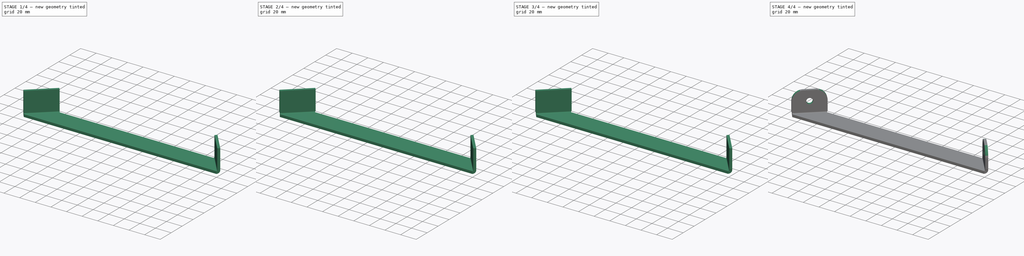
[diagram: build sequence overview — one tinted view per stage of 4, left to right]
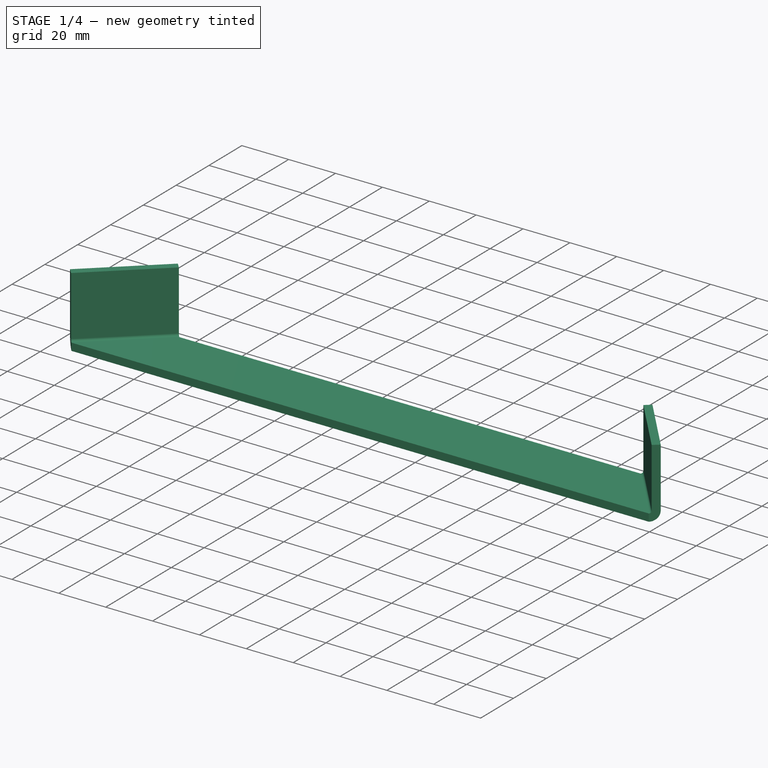
[diagram: stage 1 of 4 — iso view after this stage's code; geometry added in this stage tinted green]
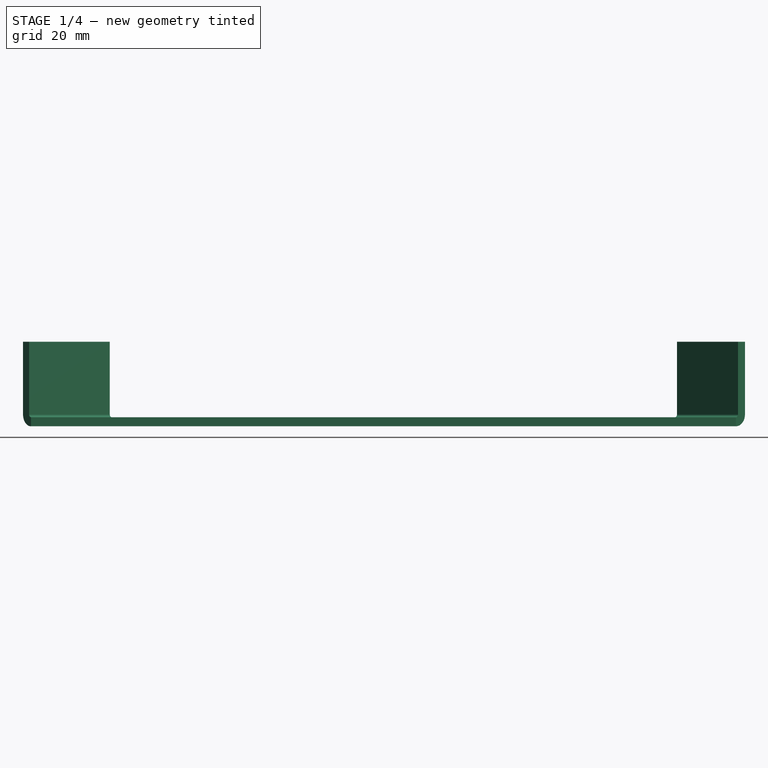
[diagram: stage 1 of 4 — front view after this stage's code; geometry added in this stage tinted green]
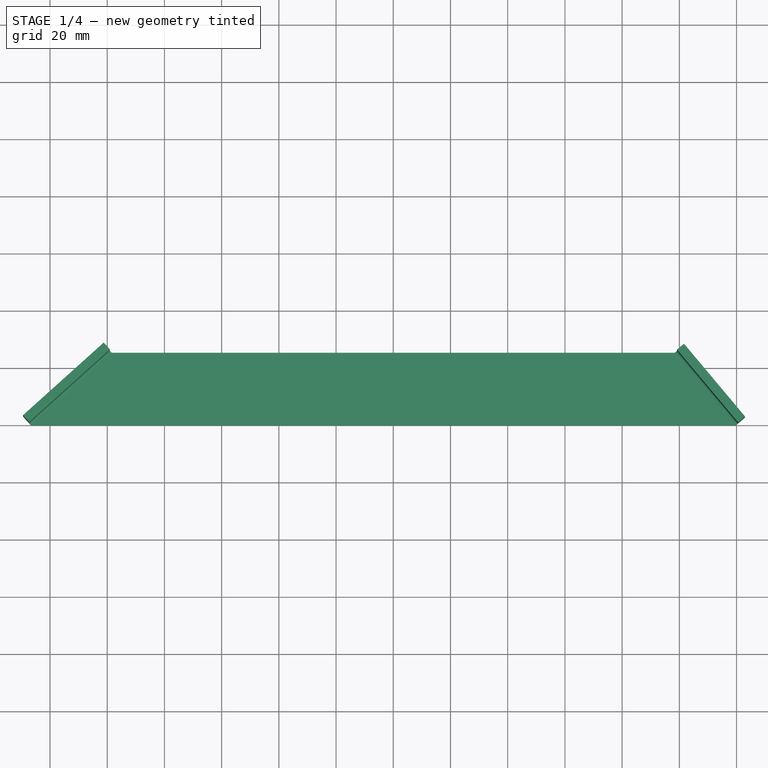
[diagram: stage 1 of 4 — top view after this stage's code; geometry added in this stage tinted green]
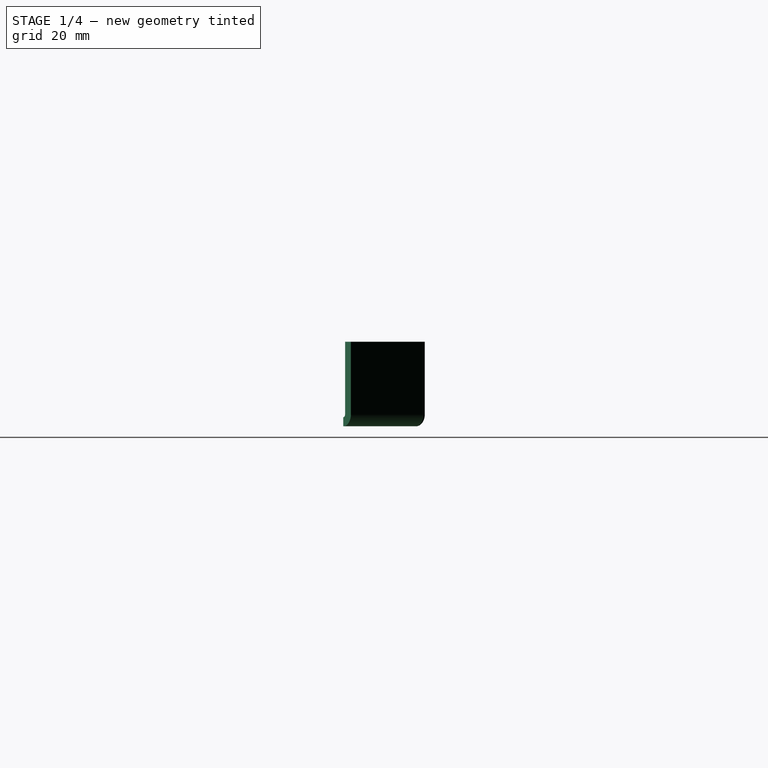
[diagram: stage 1 of 4 — right view after this stage's code; geometry added in this stage tinted green]
FCSTD DOCUMENT  (FreeCAD 2023.131R26244 +5365 (Git))
Label: dodge licence plate holder support
License: All rights reserved
LicenseURL: http://en.wikipedia.org/wiki/All_rights_reserved
objects: Sketcher::SketchObject×4, PartDesign::Pocket×4, PartDesign::FeaturePython×2, PartDesign::Hole×2, PartDesign::Pad×1, PartDesign::Chamfer×1, PartDesign::Fillet×1, PartDesign::Body×1, Part::Feature×1, Part::Part2DObjectPython×1
note: 42 computed .brp shape members not serialized (recipe doc carries the construction recipe); baked Part::Feature solids carry a one-line shape summary decoded from their .brp

FEATURE [Sketcher::SketchObject] Sketch
  ArcFitTolerance = 1e-06
  AttachmentSupport = -> [XY_Plane]
  ExternalBSplineMaxDegree = 5
  ExternalBSplineTolerance = 0.0001
  FixShape = 1
  FullyConstrained = true
  InternalTolerance = 1e-06
  InvalidShape = false
  MakeInternals = false
  MapMode = 5
  Support = -> [XY_Plane]
  TreeRank = 13
  ValidateShape = false
  sketch-geometry (4):
    g0: LineSegment StartX=-98.425 StartY=25.4 StartZ=0 EndX=-126.635 EndY=-3.6e-15 EndZ=0
    g1: LineSegment StartX=-98.425 StartY=25.4 StartZ=0 EndX=98.425 EndY=25.4 EndZ=0
    g2: LineSegment StartX=98.425 StartY=25.4 StartZ=0 EndX=119.738 EndY=0 EndZ=0
    g3: LineSegment StartX=119.738 StartY=0 StartZ=0 EndX=-126.635 EndY=0 EndZ=0
  constraints (11):
    c: PointOnObject(g0,g-1)
    c: Coincident(g1,g0)
    c: Coincident(g2,g1)
    c: PointOnObject(g2,g-1)
    c: Coincident(g3,g2)
    c: Coincident(g3,g0)
    c: Symmetric(g0,g1,g-2)
    c: Distance(g-1,g1) = 25.4
    c: Distance(g1,g0) = 196.85
    c: Angle(g2,g3) = 0.872665
    c: Angle(g3,g0) = 0.733038
FEATURE [PartDesign::Pad] Pad
  AddSubType = 0
  AlongSketchNormal = false
  AutoTaperInnerAngle = true
  CheckUpToFaceLimits = true
  ClaimChildren = false
  Direction = (0,0,1)
  Fit = 0
  FitJoin = 0
  FixShape = 1
  InnerFit = 0
  InnerFitJoin = 0
  InvalidShape = false
  Length = 3.175
  Length2 = 100
  Linearize = true
  NewSolid = false
  Profile = -> Sketch
  Suppress = false
  TaperInnerAngle = 0
  TaperInnerAngleRev = 0
  TreeRank = 14
  Type = 0
  ValidateShape = false
  _ProfileBasedVersion = 1
FEATURE [PartDesign::FeaturePython] Bend  # WARN: FeaturePython — macro-defined, semantics opaque (R4)
  AutoMiter = true
  BaseFeature = -> Pad
  BendType = 0
  FixShape = 1
  InvalidShape = false
  LengthList = [25.4]
  LengthSpec = 0
  NewSolid = false
  ReliefFactor = 0.7
  Suppress = false
  TreeRank = 15
  UseReliefFactor = false
  ValidateShape = false
  angle = 90
  baseObject = -> Pad [Face3]
  bendAList = [90]
  extend1 = 0
  extend2 = 0
  gap1 = 0
  gap2 = 0
  invert = false
  kfactor = 0.5
  length = 25.4
  maxExtendDist = 5
  minGap = 0.2
  minReliefGap = 1
  miterangle1 = 0
  miterangle2 = 0
  offset = 0
  radius = 1
  reliefType = 0
  reliefd = 1
  reliefw = 0.8
  sketchflip = false
  sketchinvert = false
  unfold = false
FEATURE [PartDesign::FeaturePython] Bend001  # WARN: FeaturePython — macro-defined, semantics opaque (R4)
  AutoMiter = true
  BaseFeature = -> Bend
  BendType = 0
  FixShape = 1
  InvalidShape = false
  LengthList = [25.4]
  LengthSpec = 0
  NewSolid = false
  ReliefFactor = 0.7
  Suppress = false
  TreeRank = 16
  UseReliefFactor = false
  ValidateShape = false
  angle = 90
  baseObject = -> Bend [Face1]
  bendAList = [90]
  extend1 = 0
  extend2 = 0
  gap1 = 0
  gap2 = 0
  invert = false
  kfactor = 0.5
  length = 25.4
  maxExtendDist = 5
  minGap = 0.2
  minReliefGap = 1
  miterangle1 = 0
  miterangle2 = 0
  offset = 0
  radius = 1
  reliefType = 0
  reliefd = 1
  reliefw = 0.8
  sketchflip = false
  sketchinvert = false
  unfold = false
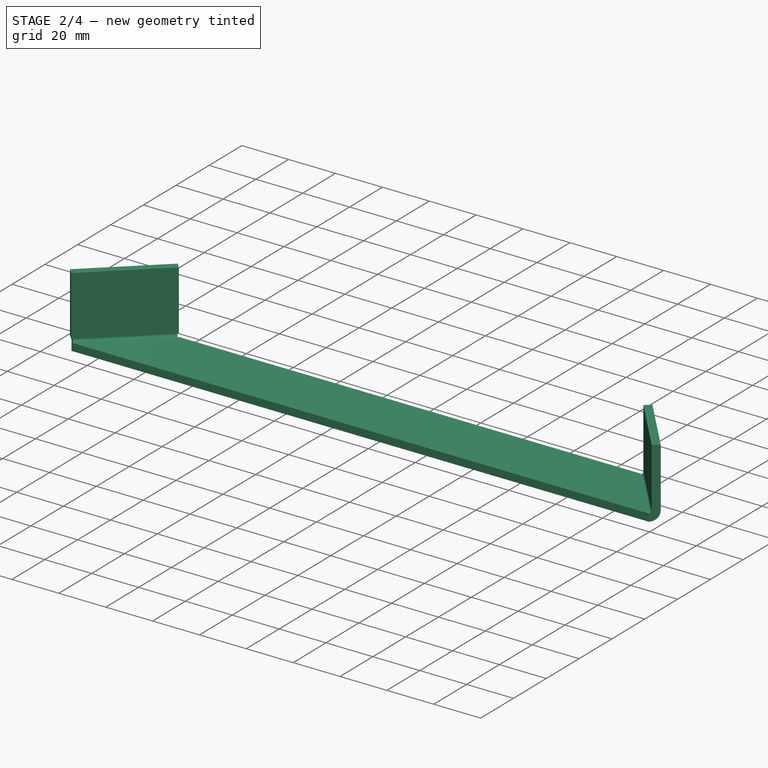
[diagram: stage 2 of 4 — iso view after this stage's code; geometry added in this stage tinted green]
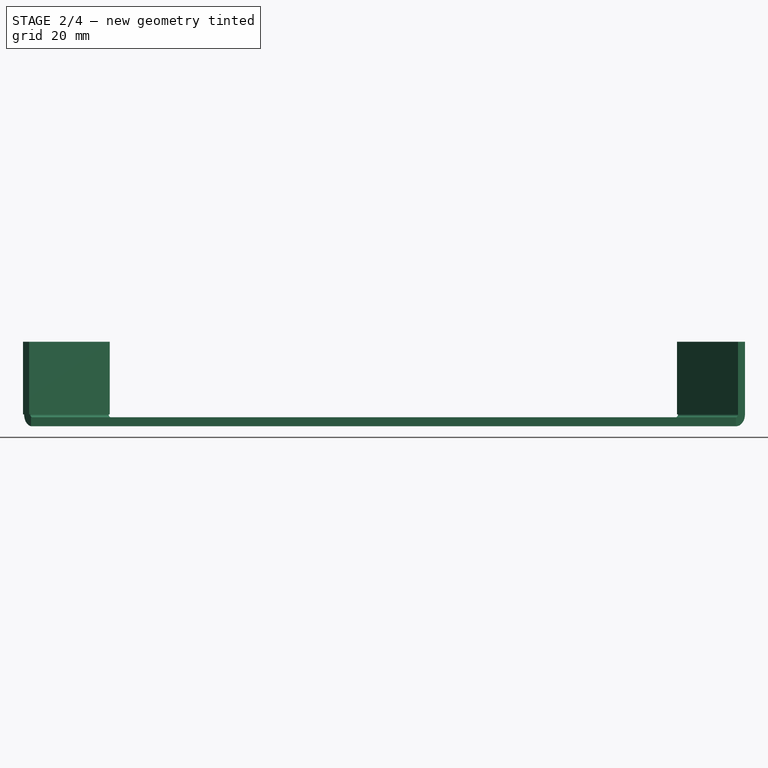
[diagram: stage 2 of 4 — front view after this stage's code; geometry added in this stage tinted green]
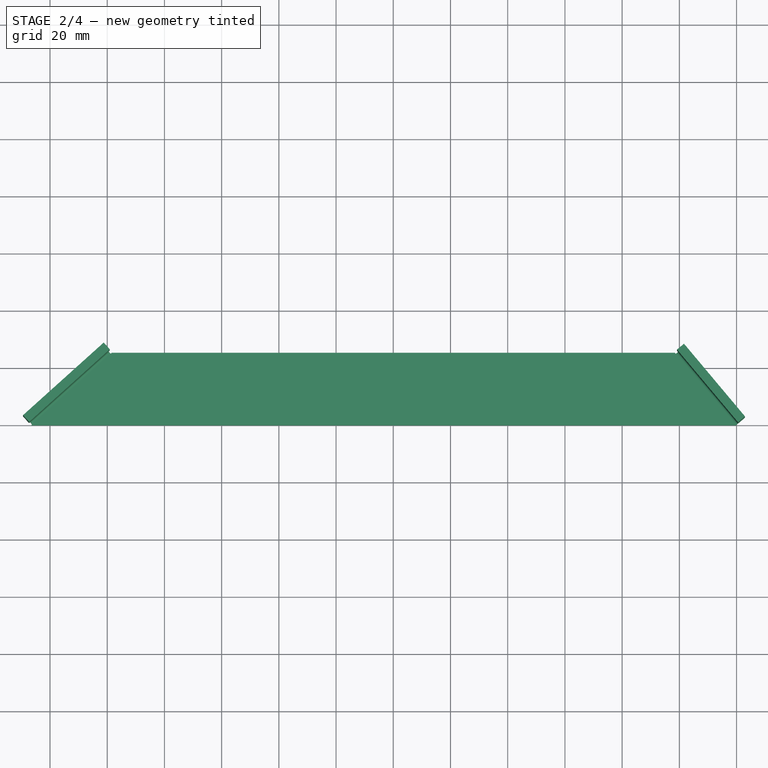
[diagram: stage 2 of 4 — top view after this stage's code; geometry added in this stage tinted green]
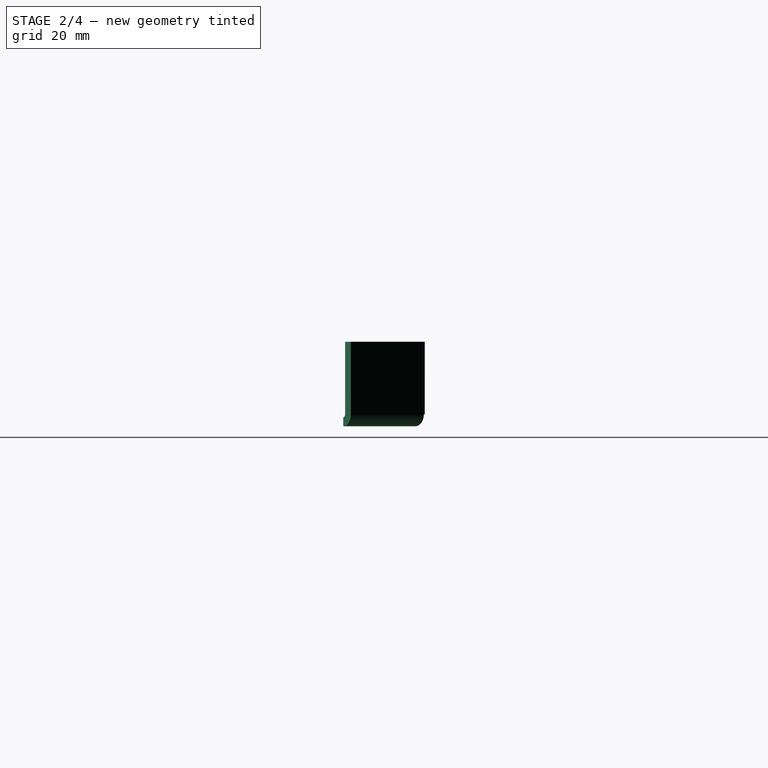
[diagram: stage 2 of 4 — right view after this stage's code; geometry added in this stage tinted green]
FEATURE [Sketcher::SketchObject] Sketch001
  ArcFitTolerance = 1e-06
  AttachmentSupport = -> [Bend001]
  ExternalBSplineMaxDegree = 5
  ExternalBSplineTolerance = 0.0001
  ExternalGeometry = -> [Bend001]
  FixShape = 1
  FullyConstrained = true
  InternalTolerance = 1e-06
  InvalidShape = false
  MakeInternals = false
  MapMode = 5
  Placement = pos=(-57.368,63.7136,-9.5e-15) rot=(0.87885,0.337359,0.337359;1.69958rad)
  Support = -> [Bend001]
  TreeRank = 17
  ValidateShape = false
  sketch-geometry (1):
    g0: Circle CenterX=-75.128 CenterY=16.875 CenterZ=0 NormalX=0 NormalY=0 NormalZ=1 AngleXU=0 Radius=3.2385
  constraints (2):
    c: Symmetric(g-3,g-4,g0)
    c: Diameter(g0) = 6.477
FEATURE [PartDesign::Pocket] Pocket
  AddSubType = 1
  AutoTaperInnerAngle = true
  BaseFeature = -> Bend001
  CheckUpToFaceLimits = true
  ClaimChildren = false
  Fit = 0
  FitJoin = 0
  FixShape = 1
  InnerFit = 0
  InnerFitJoin = 0
  InvalidShape = false
  Length = 0.508
  Length2 = 100
  Linearize = true
  NewSolid = false
  Profile = -> Bend001 [Face13]
  Suppress = false
  TaperInnerAngle = 0
  TaperInnerAngleRev = 0
  TreeRank = 21
  Type = 0
  ValidateShape = false
  _ProfileBasedVersion = 1
  _Version = 1
FEATURE [PartDesign::Pocket] Pocket001
  AddSubType = 1
  AutoTaperInnerAngle = true
  BaseFeature = -> Pocket
  CheckUpToFaceLimits = true
  ClaimChildren = false
  Fit = 0
  FitJoin = 0
  FixShape = 1
  InnerFit = 0
  InnerFitJoin = 0
  InvalidShape = false
  Length = 0.508
  Length2 = 100
  Linearize = true
  NewSolid = false
  Profile = -> Pocket [Face2]
  Suppress = false
  TaperInnerAngle = 0
  TaperInnerAngleRev = 0
  TreeRank = 22
  Type = 0
  ValidateShape = false
  _ProfileBasedVersion = 1
  _Version = 1
FEATURE [PartDesign::Pocket] Pocket002
  AddSubType = 1
  AutoTaperInnerAngle = true
  BaseFeature = -> Pocket001
  CheckUpToFaceLimits = true
  ClaimChildren = false
  Fit = 0
  FitJoin = 0
  FixShape = 1
  InnerFit = 0
  InnerFitJoin = 0
  InvalidShape = false
  Length = 0.508
  Length2 = 100
  Linearize = true
  NewSolid = false
  Profile = -> Pocket001 [Face3]
  Suppress = false
  TaperInnerAngle = 0
  TaperInnerAngleRev = 0
  TreeRank = 23
  Type = 0
  ValidateShape = false
  _ProfileBasedVersion = 1
  _Version = 1
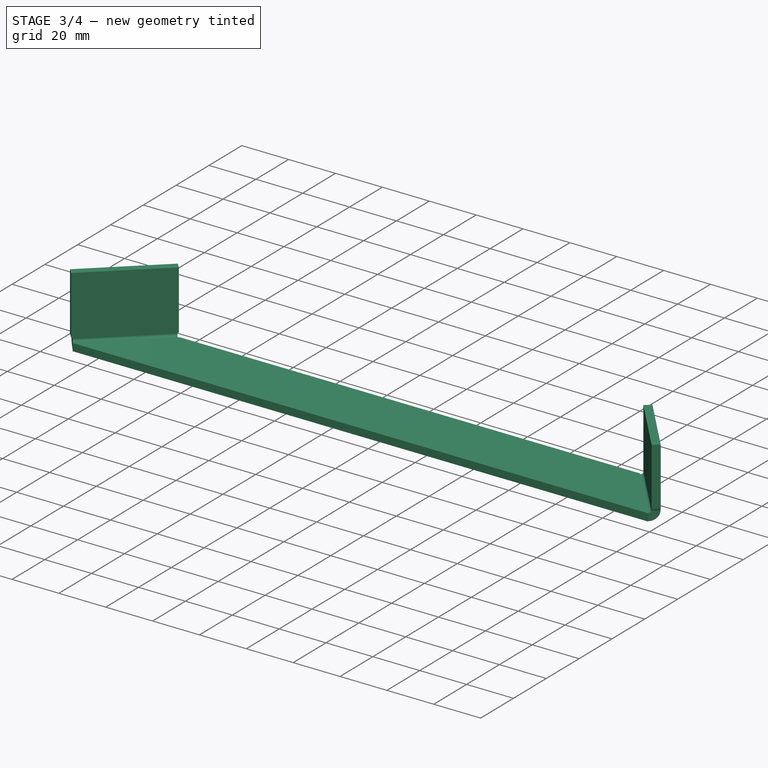
[diagram: stage 3 of 4 — iso view after this stage's code; geometry added in this stage tinted green]
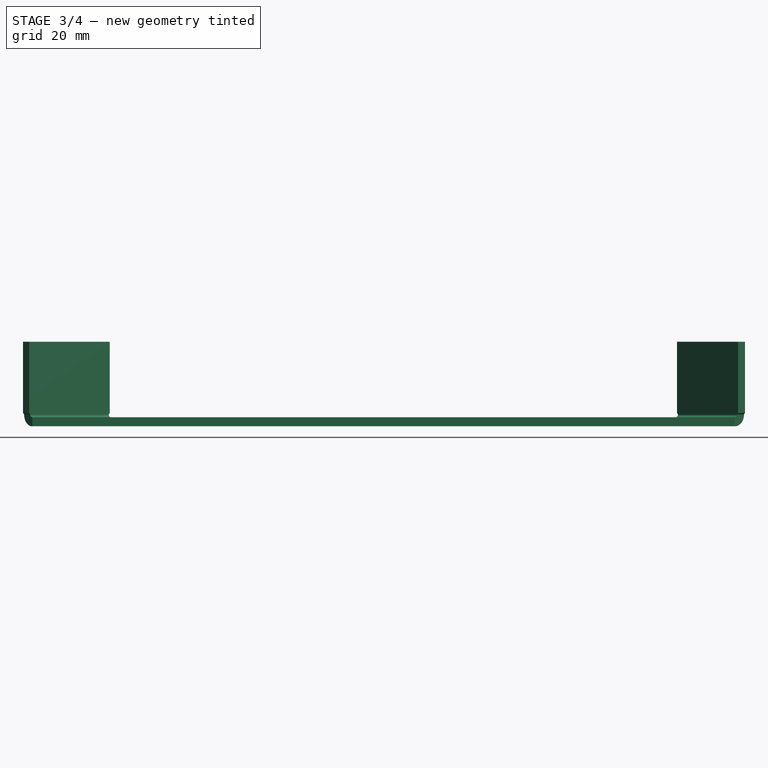
[diagram: stage 3 of 4 — front view after this stage's code; geometry added in this stage tinted green]
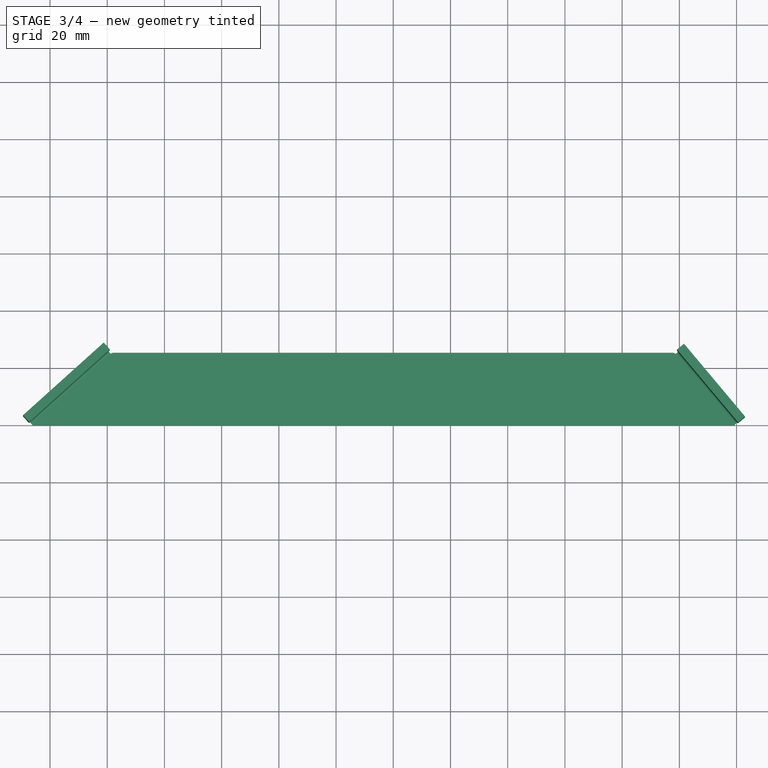
[diagram: stage 3 of 4 — top view after this stage's code; geometry added in this stage tinted green]
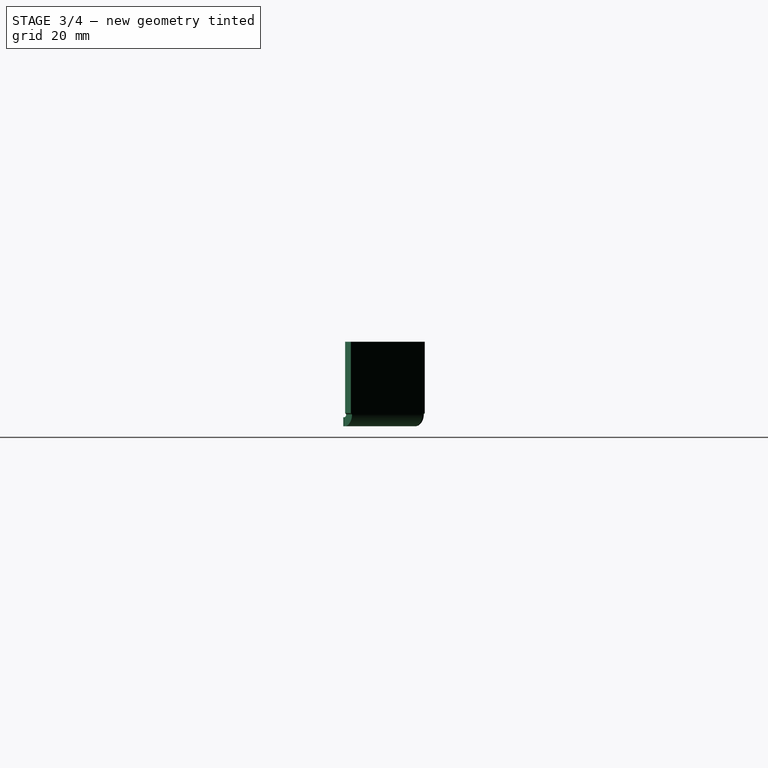
[diagram: stage 3 of 4 — right view after this stage's code; geometry added in this stage tinted green]
FEATURE [PartDesign::Pocket] Pocket003
  AddSubType = 1
  AutoTaperInnerAngle = true
  BaseFeature = -> Pocket002
  CheckUpToFaceLimits = true
  ClaimChildren = false
  Fit = 0
  FitJoin = 0
  FixShape = 1
  InnerFit = 0
  InnerFitJoin = 0
  InvalidShape = false
  Length = 0.508
  Length2 = 100
  Linearize = true
  NewSolid = false
  Profile = -> Pocket002 [Face18]
  Suppress = false
  TaperInnerAngle = 0
  TaperInnerAngleRev = 0
  TreeRank = 24
  Type = 0
  ValidateShape = false
  _ProfileBasedVersion = 1
  _Version = 1
FEATURE [PartDesign::Chamfer] Chamfer
  AddSubType = 0
  Angle = 45
  Base = -> Pocket003 [Edge67,Edge31,Edge2,Edge44,Edge29,Edge65,Edge41,Edge1]
  BaseFeature = -> Pocket003
  ChamferType = 0
  FixShape = 1
  FlipDirection = false
  InvalidShape = false
  NewSolid = false
  Size = 0.4826
  Size2 = 1
  SupportTransform = false
  Suppress = false
  TreeRank = 25
  ValidateShape = false
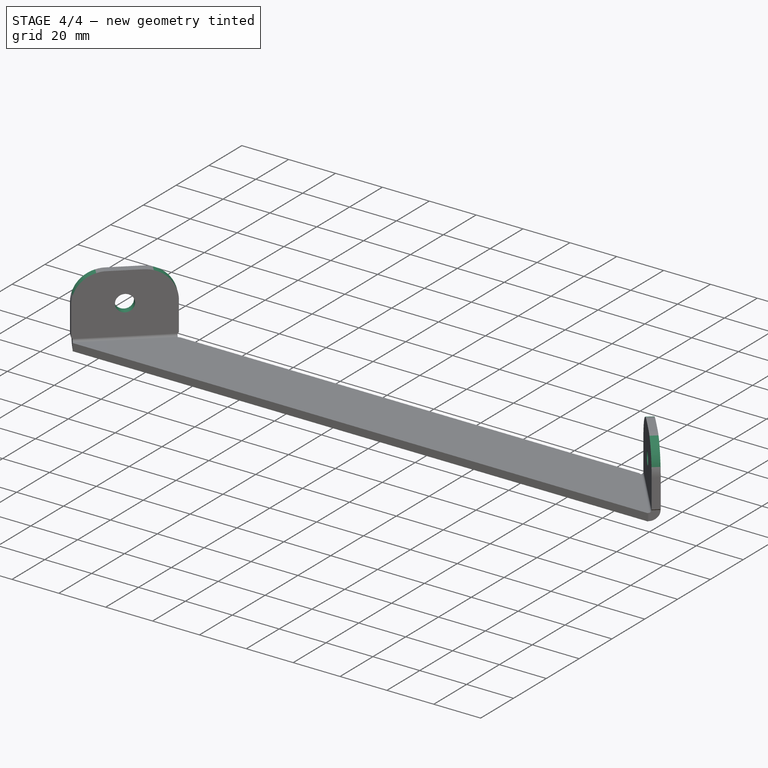
[diagram: stage 4 of 4 — iso view after this stage's code; geometry added in this stage tinted green]
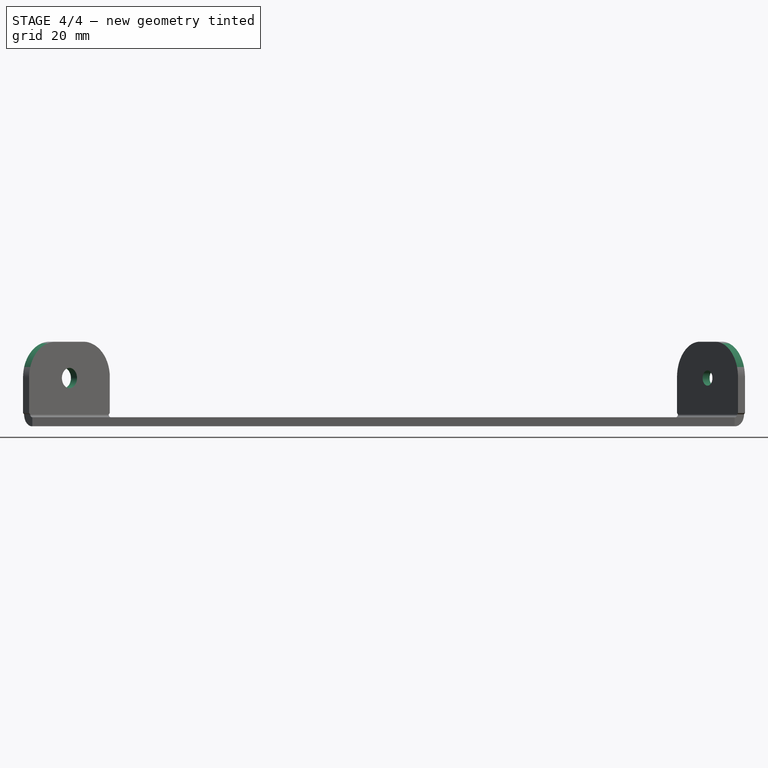
[diagram: stage 4 of 4 — front view after this stage's code; geometry added in this stage tinted green]
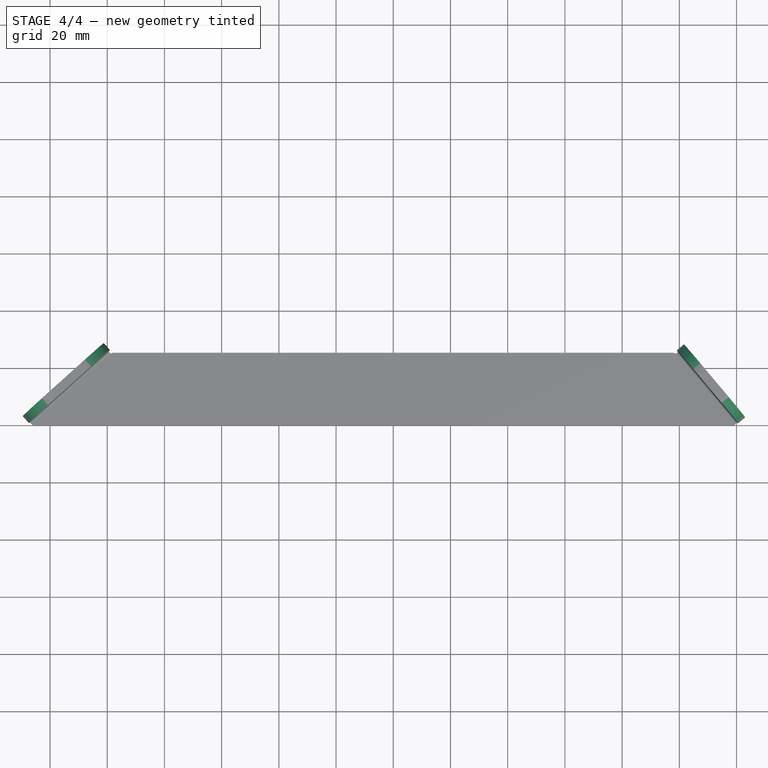
[diagram: stage 4 of 4 — top view after this stage's code; geometry added in this stage tinted green]
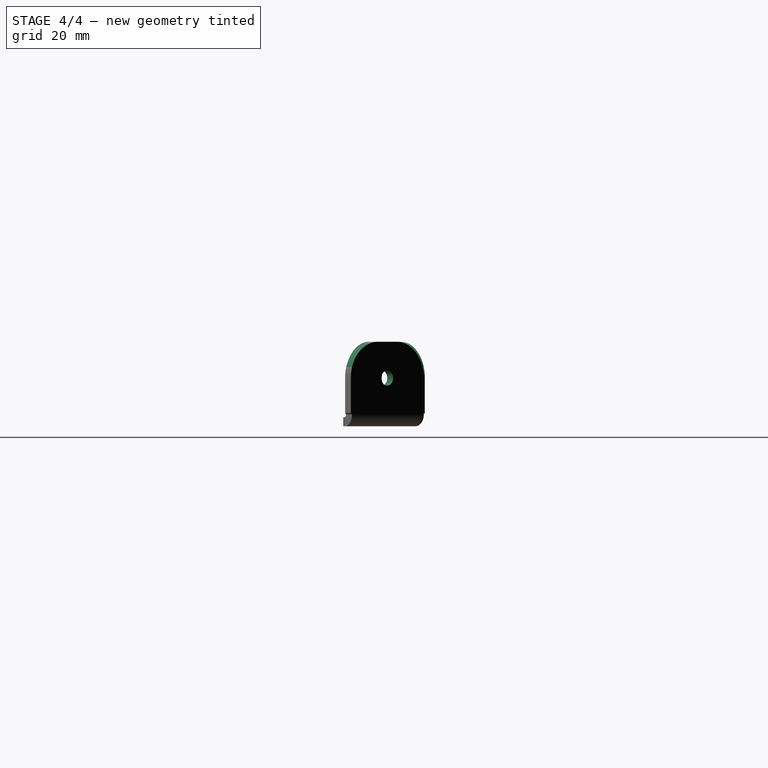
[diagram: stage 4 of 4 — right view after this stage's code; geometry added in this stage tinted green]
FEATURE [PartDesign::Hole] Hole
  AddSubType = 1
  BaseFeature = -> Chamfer
  ClaimChildren = false
  CustomThreadClearance = 0
  Depth = 25
  DepthType = 0
  Diameter = 7.1
  DrillForDepth = false
  DrillPoint = 1
  DrillPointAngle = 118
  Fit = 0
  FitJoin = 0
  FixShape = 1
  HoleCutCountersinkAngle = 90
  HoleCutCustomValues = false
  HoleCutDepth = 0
  HoleCutDiameter = 0
  HoleCutType = 0
  InnerFit = 0
  InnerFitJoin = 0
  InvalidShape = false
  Linearize = true
  ModelThread = false
  NewSolid = false
  Profile = -> Sketch001
  Suppress = false
  Tapered = false
  TaperedAngle = 90
  ThreadClass = 0
  ThreadDepth = 25
  ThreadDepthType = 0
  ThreadDirection = 0
  ThreadFit = 0
  ThreadSize = 9
  ThreadType = 3
  Threaded = false
  TreeRank = 18
  UseCustomThreadClearance = false
  ValidateShape = false
  _ProfileBasedVersion = 1
FEATURE [Sketcher::SketchObject] Sketch002
  ArcFitTolerance = 1e-06
  AttachmentSupport = -> [Hole]
  ExternalBSplineMaxDegree = 5
  ExternalBSplineTolerance = 0.0001
  ExternalGeometry = -> [Hole]
  FixShape = 1
  FullyConstrained = false
  InternalTolerance = 1e-06
  InvalidShape = false
  MakeInternals = false
  MapMode = 5
  Placement = pos=(71.0313,59.6023,-1.03e-14) rot=(0.834817,-0.389282,-0.389282;1.75037rad)
  Support = -> [Hole]
  TreeRank = 19
  ValidateShape = false
  sketch-geometry (2):
    g0: Circle CenterX=60.3875 CenterY=16.875 CenterZ=0 NormalX=0 NormalY=0 NormalZ=1 AngleXU=0 Radius=6.31137
    g1: LineSegment [constr] StartX=60.3875 StartY=29.575 StartZ=0 EndX=60.3875 EndY=4.175 EndZ=0
  constraints (4):
    c: PointOnObject(g1,g-4)
    c: Vertical(g1)
    c: Symmetric(g-3,g-3,g1)
    c: Symmetric(g1,g1,g0)
FEATURE [PartDesign::Hole] Hole001
  AddSubType = 1
  BaseFeature = -> Hole
  ClaimChildren = false
  CustomThreadClearance = 0
  Depth = 25
  DepthType = 0
  Diameter = 5.334
  DrillForDepth = false
  DrillPoint = 1
  DrillPointAngle = 118
  Fit = 0
  FitJoin = 0
  FixShape = 1
  HoleCutCountersinkAngle = 90
  HoleCutCustomValues = false
  HoleCutDepth = 0
  HoleCutDiameter = 5.4356
  HoleCutType = 0
  InnerFit = 0
  InnerFitJoin = 0
  InvalidShape = false
  Linearize = true
  ModelThread = false
  NewSolid = false
  Profile = -> Sketch002
  Suppress = false
  Tapered = false
  TaperedAngle = 90
  ThreadClass = 0
  ThreadDepth = 23.5
  ThreadDepthType = 0
  ThreadDirection = 0
  ThreadFit = 0
  ThreadSize = 0
  ThreadType = 0
  Threaded = false
  TreeRank = 20
  UseCustomThreadClearance = false
  ValidateShape = false
  _ProfileBasedVersion = 1
FEATURE [PartDesign::Fillet] Fillet
  AddSubType = 0
  Base = -> Hole001 [Edge88,Edge89,Edge95,Edge96]
  BaseFeature = -> Hole001
  FixShape = 1
  InvalidShape = false
  NewSolid = false
  Radius = 12.446
  SupportTransform = false
  Suppress = false
  TreeRank = 26
  ValidateShape = false
FEATURE [PartDesign::Body] Body
  AutoGroupSolids = false
  ClaimAllChildren = false
  ExportMode = 0
  FixShape = 1
  Group = -> [Sketch,Pad,Bend,Bend001,Sketch001,Pocket,Pocket001,Pocket002,Pocket003,Chamfer,Hole,Sketch002,Hole001,Fillet]
  InvalidShape = false
  Origin = -> Origin
  Tip = -> Fillet
  TreeRank = 12
  ValidateShape = false
  _ExportChildren = -> [Pad,Bend,Bend001,Pocket,Pocket001,Pocket002,Pocket003,Chamfer,Hole,Hole001,Fillet]
  _GroupVersion = 1
FEATURE [Part::Feature] Unfold
  FixShape = 1
  InvalidShape = false
  TreeRank = 31
  ValidateShape = false
  shape: bbox 277.7 x 41.79 x 3.175 mm, 36 faces (baked)
FEATURE [Sketcher::SketchObject] Unfold_Sketch
  ArcFitTolerance = 1e-06
  ExternalBSplineMaxDegree = 5
  ExternalBSplineTolerance = 0.0001
  FixShape = 1
  FullyConstrained = false
  InternalTolerance = 1e-06
  InvalidShape = false
  MakeInternals = false
  TreeRank = 32
  ValidateShape = false
  sketch-geometry (34):
    g0: LineSegment StartX=-101.134 StartY=28.4085 StartZ=0 EndX=-109.479 EndY=37.6765 EndZ=0
    g1: ArcOfCircle CenterX=-118.728 CenterY=29.3485 CenterZ=0 NormalX=0 NormalY=0 NormalZ=1 AngleXU=0.733038 Radius=12.446 StartAngle=-9e-16 EndAngle=1.5708
    g2: LineSegment StartX=-127.056 StartY=38.5977 StartZ=0 EndX=-136.767 EndY=29.8537 EndZ=0
    g3: ArcOfCircle CenterX=-128.439 CenterY=20.6045 CenterZ=0 NormalX=0 NormalY=0 NormalZ=1 AngleXU=0.733038 Radius=12.446 StartAngle=1.5708 EndAngle=3.14159
    g4: LineSegment StartX=-137.688 StartY=12.2765 StartZ=0 EndX=-129.343 EndY=3.00848 EndZ=0
    g5: LineSegment StartX=-128.662 StartY=2.97276 StartZ=0 EndX=-129.343 EndY=3.00848 EndZ=0
    g6: LineSegment StartX=-128.643 StartY=2.98976 StartZ=0 EndX=-128.662 EndY=2.97276 EndZ=0
    g7: LineSegment StartX=-126.257 StartY=0.339918 StartZ=0 EndX=-128.643 EndY=2.98976 EndZ=0
    g8: LineSegment StartX=-126.257 StartY=0.339918 StartZ=0 EndX=-126.276 EndY=0.322922 EndZ=0
    g9: LineSegment StartX=-126.276 StartY=0.322922 StartZ=0 EndX=-126.152 EndY=1.8e-15 EndZ=0
    g10: LineSegment StartX=119.256 StartY=0 StartZ=0 EndX=-126.152 EndY=0 EndZ=0
    g11: LineSegment StartX=119.256 StartY=0 StartZ=0 EndX=119.428 EndY=0.369693 EndZ=0
    g12: LineSegment StartX=119.412 StartY=0.389151 StartZ=0 EndX=119.428 EndY=0.369693 EndZ=0
    g13: LineSegment StartX=119.412 StartY=0.389151 StartZ=0 EndX=122.143 EndY=2.68114 EndZ=0
    g14: LineSegment StartX=122.143 StartY=2.68114 StartZ=0 EndX=122.159 EndY=2.66169 EndZ=0
    g15: LineSegment StartX=122.159 StartY=2.66169 StartZ=0 EndX=122.839 EndY=2.6022 EndZ=0
    g16: LineSegment StartX=132.393 StartY=10.6187 StartZ=0 EndX=122.839 EndY=2.6022 EndZ=0
    g17: ArcOfCircle CenterX=124.393 CenterY=20.1529 CenterZ=0 NormalX=0 NormalY=0 NormalZ=1 AngleXU=-0.872665 Radius=12.446 StartAngle=0 EndAngle=1.5708
    g18: LineSegment StartX=128.614 StartY=34.4846 StartZ=0 EndX=133.927 EndY=28.153 EndZ=0
    g19: ArcOfCircle CenterX=119.08 CenterY=26.4845 CenterZ=0 NormalX=0 NormalY=0 NormalZ=1 AngleXU=-0.872665 Radius=12.446 StartAngle=1.5708 EndAngle=3.14159
    g20: LineSegment StartX=101.526 StartY=28.0022 StartZ=0 EndX=111.08 EndY=36.0187 EndZ=0
    g21: LineSegment StartX=101.467 StartY=27.3223 StartZ=0 EndX=101.526 EndY=28.0022 EndZ=0
    g22: LineSegment StartX=101.467 StartY=27.3223 StartZ=0 EndX=101.483 EndY=27.3028 EndZ=0
    g23: LineSegment StartX=101.483 StartY=27.3028 StartZ=0 EndX=98.7515 EndY=25.0108 EndZ=0
    g24: LineSegment StartX=98.7352 StartY=25.0303 StartZ=0 EndX=98.7515 EndY=25.0108 EndZ=0
    g25: LineSegment StartX=97.9424 StartY=25.4 StartZ=0 EndX=98.7352 EndY=25.0303 EndZ=0
    g26: LineSegment StartX=-97.9424 StartY=25.4 StartZ=0 EndX=97.9424 EndY=25.4 EndZ=0
    g27: LineSegment StartX=-97.9424 StartY=25.4 StartZ=0 EndX=-98.7836 EndY=25.0771 EndZ=0
    g28: LineSegment StartX=-98.7836 StartY=25.0771 StartZ=0 EndX=-98.8025 EndY=25.0601 EndZ=0
    g29: LineSegment StartX=-101.188 StartY=27.7099 StartZ=0 EndX=-98.8025 EndY=25.0601 EndZ=0
    g30: LineSegment StartX=-101.17 StartY=27.7269 StartZ=0 EndX=-101.188 EndY=27.7099 EndZ=0
    g31: LineSegment StartX=-101.17 StartY=27.7269 StartZ=0 EndX=-101.134 EndY=28.4085 EndZ=0
    g32: Circle CenterX=-123.414 CenterY=24.7878 CenterZ=0 NormalX=0 NormalY=0 NormalZ=1 AngleXU=-0.837758 Radius=3.55
    g33: Circle CenterX=121.542 CenterY=23.1554 CenterZ=0 NormalX=0 NormalY=0 NormalZ=1 AngleXU=0.698132 Radius=2.667
FEATURE [Part::Part2DObjectPython] Shape2DView  # Draft 2D object (typed FeaturePython)
  AutoUpdate = true
  Base = -> Unfold
  Clip = false
  FaceNumbers = [35]
  FixShape = 1
  FuseArch = false
  HiddenLines = false
  InPlace = true
  InvalidShape = false
  OnlySolids = false
  Projection = (0,0,1)
  ProjectionMode = 0
  SegmentLength = 0.05
  Tessellation = false
  TreeRank = 33
  ValidateShape = false
  VisibleOnly = false
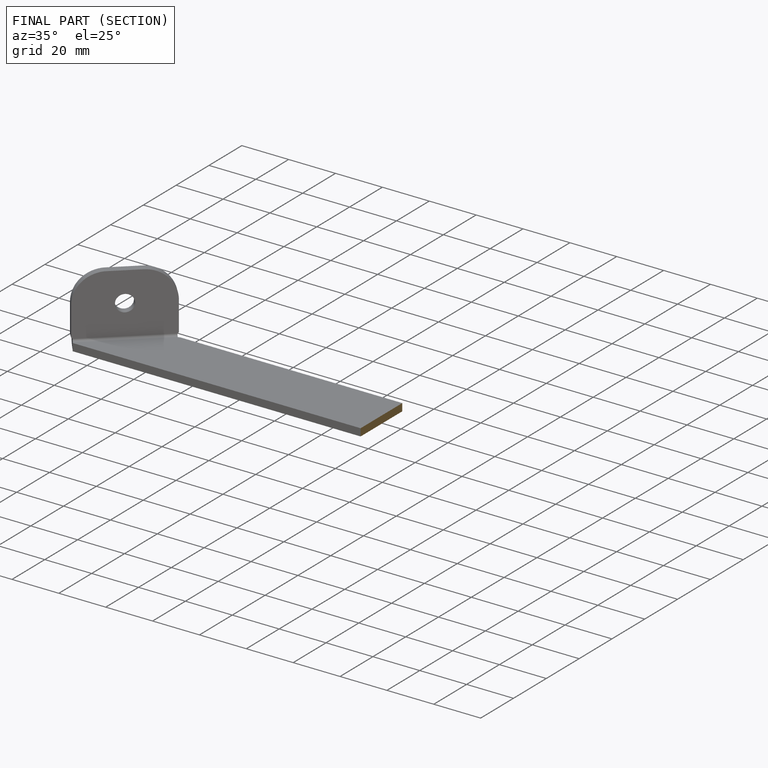
[diagram: finished part — half-section view (interior)]
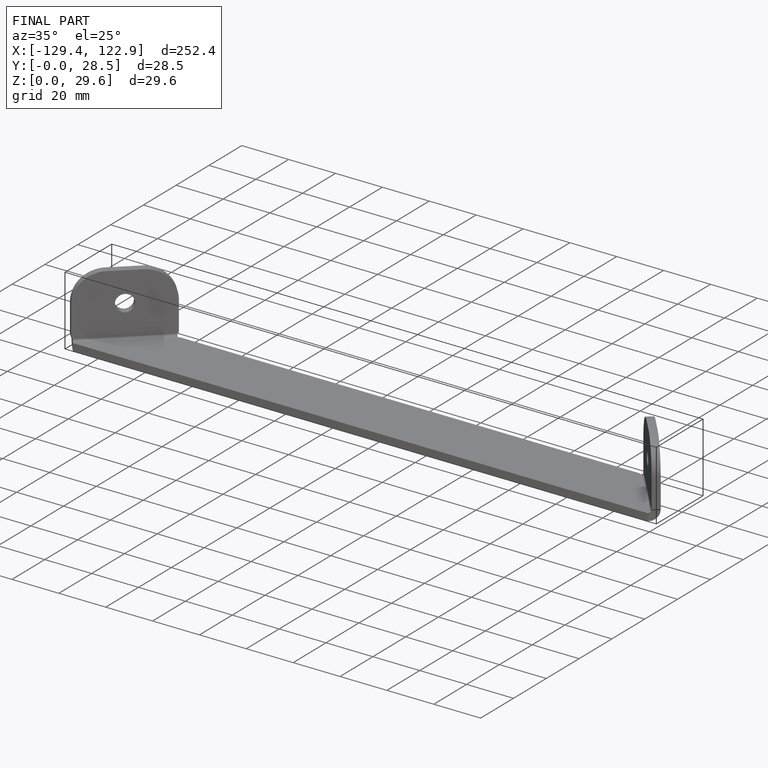
[diagram: finished part — iso view with bounding-box wireframe]
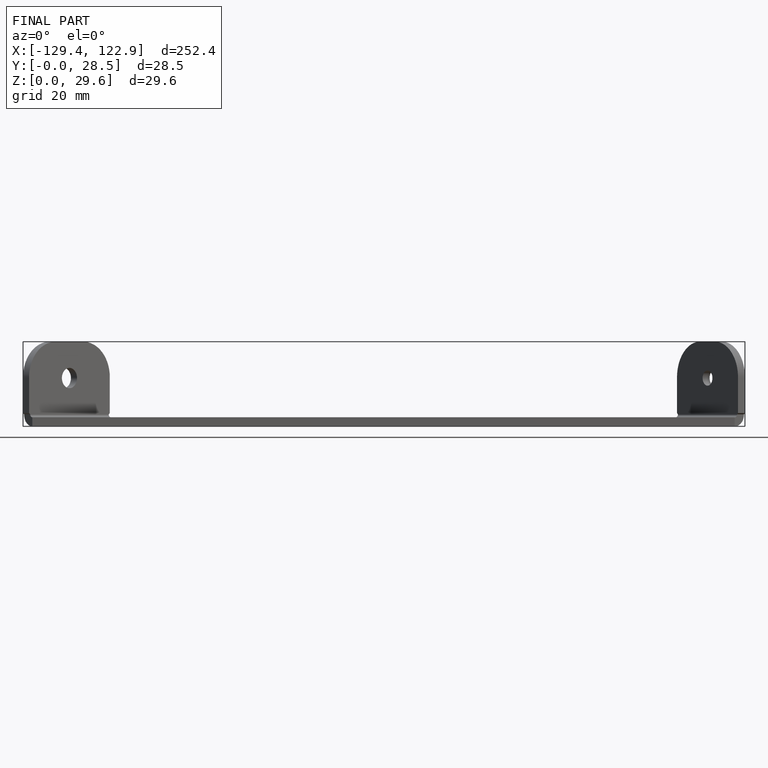
[diagram: finished part — front view with bounding-box wireframe]
